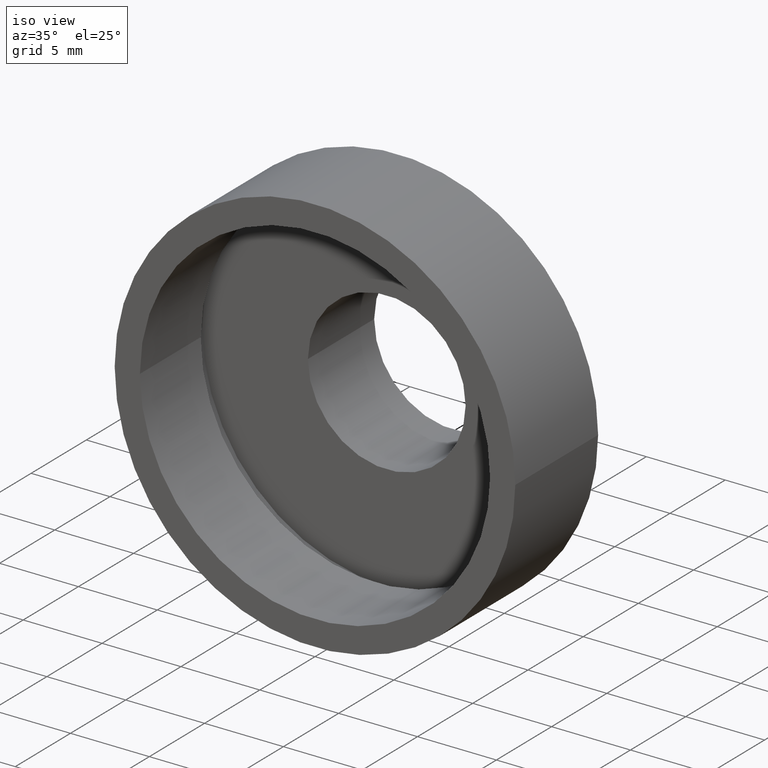
[diagram: clean part render]
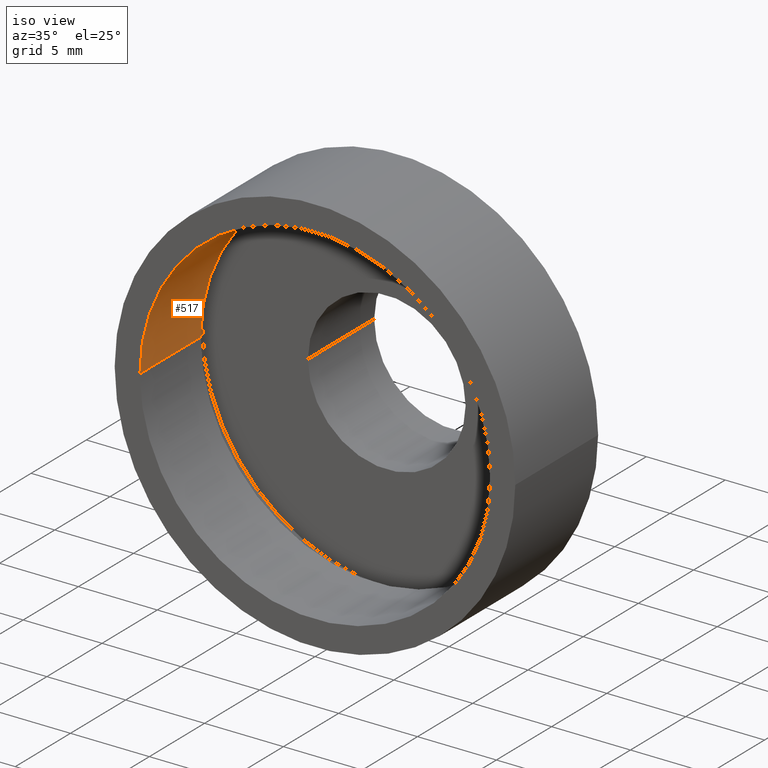
[diagram: same view with one face highlighted and labeled with its STEP entity id]
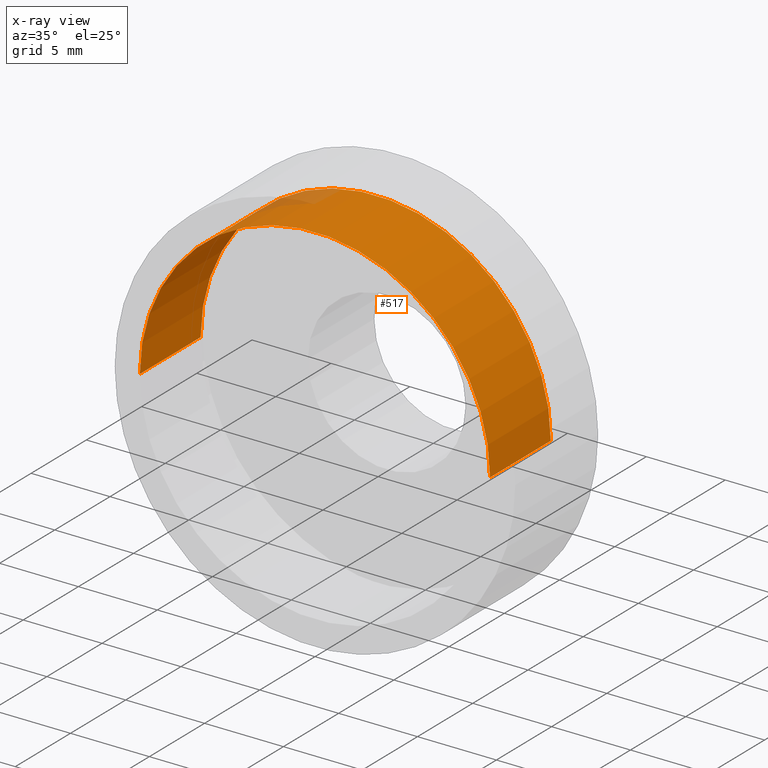
[diagram: x-ray of the same camera — body ghosted, the highlighted face saturated]
A machine part, iso view. The second image highlights one B-rep face of the part: STEP entity #517.
The next image is the same camera in x-ray: the body ghosted, the highlighted face saturated — about 2% of this face is hidden behind the body in this view.
In plain terms, the highlighted cylindrical surface (partial cylindrical patch) has radius 11.1 mm, axis along (-0, 1, -0).
Its self-contained STEP definition (entity closure, byte-faithful):
#7 = AXIS2_PLACEMENT_3D ( 'NONE', #496, #148, #584 ) ;
#21 = VECTOR ( 'NONE', #497, 1000.000000000000000 ) ;
#72 = CARTESIAN_POINT ( 'NONE',  ( 11.10000000000000000, 16.88601823708207700, 1.359357947053562200E-015 ) ) ;
#99 = LINE ( 'NONE', #468, #537 ) ;
#128 = CARTESIAN_POINT ( 'NONE',  ( 11.10000000000000100, 1.359357947053559600E-015, 1.359357947053562200E-015 ) ) ;
#130 = EDGE_CURVE ( 'NONE', #240, #326, #273, .T. ) ;
#148 = DIRECTION ( 'NONE',  ( -1.224646799147351000E-016, 1.000000000000000000, -0.0000000000000000000 ) ) ;
#163 = FACE_OUTER_BOUND ( 'NONE', #334, .T. ) ;
#175 = EDGE_CURVE ( 'NONE', #536, #240, #99, .T. ) ;
#189 = CARTESIAN_POINT ( 'NONE',  ( -11.09999999999999800, 5.499999999999994700, 0.0000000000000000000 ) ) ;
#212 = DIRECTION ( 'NONE',  ( -1.000000000000000000, 0.0000000000000000000, 0.0000000000000000000 ) ) ;
#220 = ORIENTED_EDGE ( 'NONE', *, *, #571, .F. ) ;
#223 = CARTESIAN_POINT ( 'NONE',  ( -11.09999999999999800, -1.359357947053559600E-015, 0.0000000000000000000 ) ) ;
#240 = VERTEX_POINT ( 'NONE', #189 ) ;
#260 = CARTESIAN_POINT ( 'NONE',  ( 11.10000000000000100, 5.499999999999998200, 1.359357947053562200E-015 ) ) ;
#269 = LINE ( 'NONE', #72, #21 ) ;
#273 = CIRCLE ( 'NONE', #7, 11.10000000000000000 ) ;
#326 = VERTEX_POINT ( 'NONE', #260 ) ;
#329 = ORIENTED_EDGE ( 'NONE', *, *, #175, .T. ) ;
#330 = DIRECTION ( 'NONE',  ( -1.224646799147351000E-016, 1.000000000000000000, -0.0000000000000000000 ) ) ;
#334 = EDGE_LOOP ( 'NONE', ( #340, #220, #329, #508 ) ) ;
#340 = ORIENTED_EDGE ( 'NONE', *, *, #478, .F. ) ;
#363 = DIRECTION ( 'NONE',  ( -1.000000000000000000, -1.224646799147351000E-016, 0.0000000000000000000 ) ) ;
#432 = VERTEX_POINT ( 'NONE', #128 ) ;
#449 = AXIS2_PLACEMENT_3D ( 'NONE', #534, #330, #363 ) ;
#451 = CYLINDRICAL_SURFACE ( 'NONE', #461, 11.10000000000000000 ) ;
#461 = AXIS2_PLACEMENT_3D ( 'NONE', #521, #546, #212 ) ;
#462 = DIRECTION ( 'NONE',  ( -1.224646799147351000E-016, 1.000000000000000000, -0.0000000000000000000 ) ) ;
#468 = CARTESIAN_POINT ( 'NONE',  ( -11.10000000000000000, 16.88601823708207700, 0.0000000000000000000 ) ) ;
#478 = EDGE_CURVE ( 'NONE', #432, #326, #269, .T. ) ;
#496 = CARTESIAN_POINT ( 'NONE',  ( 1.394385078907593200E-015, 5.499999999999996400, 0.0000000000000000000 ) ) ;
#497 = DIRECTION ( 'NONE',  ( -1.224646799147351000E-016, 1.000000000000000000, -0.0000000000000000000 ) ) ;
#508 = ORIENTED_EDGE ( 'NONE', *, *, #130, .T. ) ;
#517 = ADVANCED_FACE ( 'NONE', ( #163 ), #451, .F. ) ;
#521 = CARTESIAN_POINT ( 'NONE',  ( 0.0000000000000000000, 16.88601823708207700, 0.0000000000000000000 ) ) ;
#534 = CARTESIAN_POINT ( 'NONE',  ( 2.067940818438636100E-015, 0.0000000000000000000, 0.0000000000000000000 ) ) ;
#536 = VERTEX_POINT ( 'NONE', #223 ) ;
#537 = VECTOR ( 'NONE', #462, 1000.000000000000000 ) ;
#546 = DIRECTION ( 'NONE',  ( -1.224646799147351000E-016, 1.000000000000000000, -0.0000000000000000000 ) ) ;
#571 = EDGE_CURVE ( 'NONE', #536, #432, #618, .T. ) ;
#584 = DIRECTION ( 'NONE',  ( -1.000000000000000000, -1.562813942321447800E-016, 0.0000000000000000000 ) ) ;
#618 = CIRCLE ( 'NONE', #449, 11.10000000000000000 ) ;